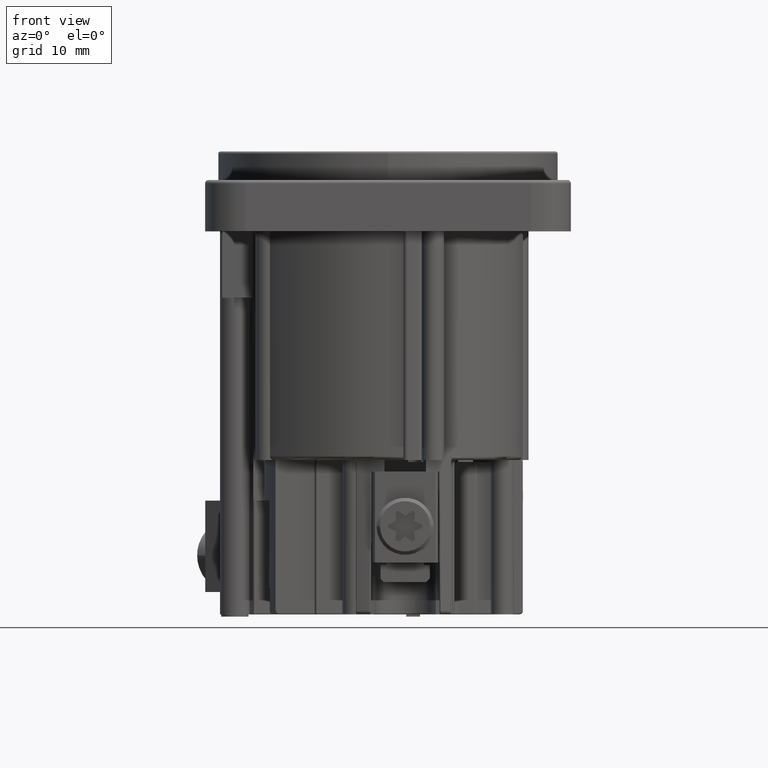
[diagram: clean part render]
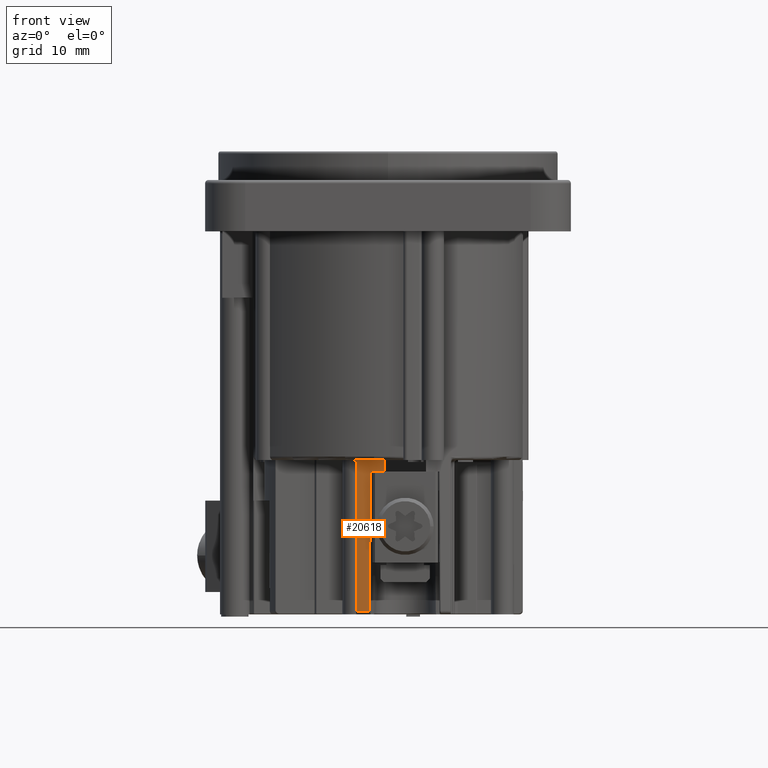
[diagram: same view with one face highlighted and labeled with its STEP entity id]
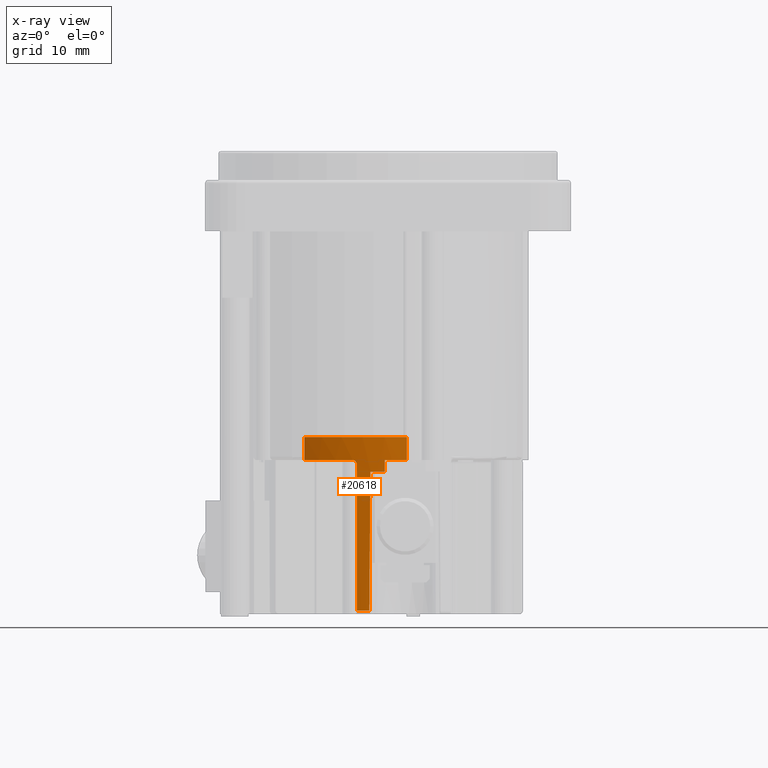
[diagram: x-ray of the same camera — body ghosted, the highlighted face saturated]
A machine part, front view. The second image highlights one B-rep face of the part: STEP entity #20618.
The next image is the same camera in x-ray: the body ghosted, the highlighted face saturated — about 0% of this face is hidden behind the body in this view.
In plain terms, the highlighted cylindrical surface (partial cylindrical patch) has radius 10.5 mm, axis along (0, 0, 1).
Its self-contained STEP definition (entity closure, byte-faithful):
#769=CARTESIAN_POINT('',(0.E0,0.E0,-2.7E1));
#770=DIRECTION('',(0.E0,0.E0,1.E0));
#771=DIRECTION('',(-6.951741476225E-1,-7.188413625253E-1,0.E0));
#772=AXIS2_PLACEMENT_3D('',#769,#770,#771);
#2304=CARTESIAN_POINT('',(0.E0,0.E0,-2.8E1));
#2305=DIRECTION('',(0.E0,0.E0,1.E0));
#2306=DIRECTION('',(-1.466348497103E-1,-9.891906898321E-1,0.E0));
#2307=AXIS2_PLACEMENT_3D('',#2304,#2305,#2306);
#3490=CARTESIAN_POINT('',(0.E0,0.E0,-2.8E1));
#3491=DIRECTION('',(0.E0,0.E0,1.E0));
#3492=DIRECTION('',(-1.285714285714E-1,-9.917002509605E-1,0.E0));
#3493=AXIS2_PLACEMENT_3D('',#3490,#3491,#3492);
#3495=CARTESIAN_POINT('',(-1.625658314958E0,-1.037339050001E1,
-4.019999999997E1));
#3496=CARTESIAN_POINT('',(-1.616109460583E0,-1.037488694175E1,
-3.884527577859E1));
#3497=CARTESIAN_POINT('',(-1.597007894854E0,-1.037785373612E1,
-3.613527311255E1));
#3498=CARTESIAN_POINT('',(-1.568343732354E0,-1.038222411473E1,
-3.206860644572E1));
#3499=CARTESIAN_POINT('',(-1.549226495747E0,-1.038508501063E1,
-2.935638688922E1));
#3500=CARTESIAN_POINT('',(-1.539665921959E0,-1.038650224324E1,-2.8E1));
#3502=CARTESIAN_POINT('',(0.E0,0.E0,-4.02E1));
#3503=DIRECTION('',(0.E0,0.E0,-1.E0));
#3504=DIRECTION('',(-1.548246046385E-1,-9.879419728904E-1,0.E0));
#3505=AXIS2_PLACEMENT_3D('',#3502,#3503,#3504);
#3507=DIRECTION('',(-4.504777646323E-8,-1.675936298540E-7,1.E0));
#3508=VECTOR('',#3507,1.290000000055E1);
#3509=CARTESIAN_POINT('',(-2.725960957345E0,-1.013997484447E1,
-4.020000000055E1));
#3510=LINE('',#3509,#3508);
#3511=CARTESIAN_POINT('',(-3.1E0,-1.003194896319E1,-2.7E1));
#3512=CARTESIAN_POINT('',(-3.093768723899E0,-1.003387450687E1,-2.7E1));
#3513=CARTESIAN_POINT('',(-3.081317246079E0,-1.003770945207E1,
-2.700038790677E1));
#3514=CARTESIAN_POINT('',(-3.068887600475E0,-1.004151238772E1,
-2.700155205356E1));
#3515=CARTESIAN_POINT('',(-3.062678566223E0,-1.004340579684E1,
-2.700233053469E1));
#3517=CARTESIAN_POINT('',(0.E0,0.E0,-2.5E1));
#3518=DIRECTION('',(0.E0,0.E0,1.E0));
#3519=DIRECTION('',(-6.951741476225E-1,-7.188413625253E-1,0.E0));
#3520=AXIS2_PLACEMENT_3D('',#3517,#3518,#3519);
#3522=DIRECTION('',(0.E0,0.E0,-1.E0));
#3523=VECTOR('',#3522,2.E0);
#3524=CARTESIAN_POINT('',(1.65E0,-1.036954675962E1,-2.5E1));
#3525=LINE('',#3524,#3523);
#3526=CARTESIAN_POINT('',(0.E0,0.E0,-2.7E1));
#3527=DIRECTION('',(0.E0,0.E0,-1.E0));
#3528=DIRECTION('',(1.571428571429E-1,-9.875758818688E-1,0.E0));
#3529=AXIS2_PLACEMENT_3D('',#3526,#3527,#3528);
#3531=DIRECTION('',(0.E0,0.E0,-1.E0));
#3532=VECTOR('',#3531,1.E0);
#3533=CARTESIAN_POINT('',(-3.E-1,-1.049571341072E1,-2.7E1));
#3534=LINE('',#3533,#3532);
#7949=CARTESIAN_POINT('',(-3.062678566223E0,-1.004340579684E1,
-2.700233053469E1));
#7950=CARTESIAN_POINT('',(-3.030532161172E0,-1.005320865732E1,
-2.700636101166E1));
#7951=CARTESIAN_POINT('',(-2.967736445742E0,-1.007202883517E1,
-2.702422939700E1));
#7952=CARTESIAN_POINT('',(-2.874908977772E0,-1.009889612392E1,
-2.708498378292E1));
#7953=CARTESIAN_POINT('',(-2.794399497669E0,-1.012142224858E1,
-2.717899083654E1));
#7954=CARTESIAN_POINT('',(-2.749547485608E0,-1.013363632294E1,
-2.725789939883E1));
#7955=CARTESIAN_POINT('',(-2.725961538462E0,-1.013997700643E1,-2.73E1));
#11254=DIRECTION('',(0.E0,0.E0,-1.E0));
#11255=VECTOR('',#11254,2.E0);
#11256=CARTESIAN_POINT('',(-7.299328550037E0,-7.547834306516E0,-2.5E1));
#11257=LINE('',#11256,#11255);
#13595=CARTESIAN_POINT('',(1.65E0,-1.036954675962E1,-2.7E1));
#13597=VERTEX_POINT('',#13595);
#13600=CARTESIAN_POINT('',(1.65E0,-1.036954675962E1,-2.5E1));
#13601=VERTEX_POINT('',#13600);
#13606=CARTESIAN_POINT('',(-7.299328550037E0,-7.547834306516E0,-2.7E1));
#13608=VERTEX_POINT('',#13606);
#13614=CARTESIAN_POINT('',(-7.299328550037E0,-7.547834306516E0,-2.5E1));
#13615=VERTEX_POINT('',#13614);
#14203=CARTESIAN_POINT('',(-3.E-1,-1.049571341072E1,-2.7E1));
#14204=VERTEX_POINT('',#14203);
#14676=VERTEX_POINT('',#3495);
#14677=VERTEX_POINT('',#3500);
#14786=CARTESIAN_POINT('',(-2.725961538462E0,-1.013997700643E1,-4.02E1));
#14787=VERTEX_POINT('',#14786);
#15065=CARTESIAN_POINT('',(-2.725961538462E0,-1.013997700643E1,-2.73E1));
#15066=VERTEX_POINT('',#15065);
#15090=CARTESIAN_POINT('',(-3.1E0,-1.003194896319E1,-2.7E1));
#15091=VERTEX_POINT('',#15090);
#15108=VERTEX_POINT('',#7949);
#16027=CARTESIAN_POINT('',(-1.35E0,-1.041285263509E1,-2.8E1));
#16028=CARTESIAN_POINT('',(-3.E-1,-1.049571341072E1,-2.8E1));
#16029=VERTEX_POINT('',#16027);
#16030=VERTEX_POINT('',#16028);
#20589=CARTESIAN_POINT('',(0.E0,0.E0,0.E0));
#20590=DIRECTION('',(0.E0,0.E0,1.E0));
#20591=DIRECTION('',(1.E0,0.E0,0.E0));
#20592=AXIS2_PLACEMENT_3D('',#20589,#20590,#20591);
#20593=CYLINDRICAL_SURFACE('',#20592,1.05E1);
#20594=ORIENTED_EDGE('',*,*,#19122,.F.);
#20595=ORIENTED_EDGE('',*,*,#18941,.F.);
#20597=ORIENTED_EDGE('',*,*,#20596,.F.);
#20599=ORIENTED_EDGE('',*,*,#20598,.T.);
#20601=ORIENTED_EDGE('',*,*,#20600,.T.);
#20603=ORIENTED_EDGE('',*,*,#20602,.F.);
#20605=ORIENTED_EDGE('',*,*,#20604,.F.);
#20606=ORIENTED_EDGE('',*,*,#17142,.F.);
#20608=ORIENTED_EDGE('',*,*,#20607,.F.);
#20610=ORIENTED_EDGE('',*,*,#20609,.T.);
#20612=ORIENTED_EDGE('',*,*,#20611,.T.);
#20613=ORIENTED_EDGE('',*,*,#17134,.T.);
#20615=ORIENTED_EDGE('',*,*,#20614,.T.);
#20616=EDGE_LOOP('',(#20594,#20595,#20597,#20599,#20601,#20603,#20605,#20606,
#20608,#20610,#20612,#20613,#20615));
#20617=FACE_OUTER_BOUND('',#20616,.F.);
#773=CIRCLE('',#772,1.05E1);
#2308=CIRCLE('',#2307,1.05E1);
#3494=CIRCLE('',#3493,1.05E1);
#3501=B_SPLINE_CURVE_WITH_KNOTS('',3,(#3495,#3496,#3497,#3498,#3499,#3500),
.UNSPECIFIED.,.F.,.F.,(4,1,1,4),(0.E0,3.333333333333E-1,6.666666666667E-1,1.E0),
.UNSPECIFIED.);
#3506=CIRCLE('',#3505,1.05E1);
#3516=B_SPLINE_CURVE_WITH_KNOTS('',3,(#3511,#3512,#3513,#3514,#3515),
.UNSPECIFIED.,.F.,.F.,(4,1,4),(0.E0,5.E-1,1.E0),.UNSPECIFIED.);
#3521=CIRCLE('',#3520,1.05E1);
#3530=CIRCLE('',#3529,1.05E1);
#7956=B_SPLINE_CURVE_WITH_KNOTS('',3,(#7949,#7950,#7951,#7952,#7953,#7954,
#7955),.UNSPECIFIED.,.F.,.F.,(4,1,1,1,4),(0.E0,2.5E-1,5.E-1,7.5E-1,1.E0),
.UNSPECIFIED.);
#17134=EDGE_CURVE('',#13597,#14204,#3530,.T.);
#17142=EDGE_CURVE('',#13608,#15091,#773,.T.);
#18941=EDGE_CURVE('',#14677,#16029,#2308,.T.);
#19122=EDGE_CURVE('',#16029,#16030,#3494,.T.);
#20596=EDGE_CURVE('',#14676,#14677,#3501,.T.);
#20598=EDGE_CURVE('',#14676,#14787,#3506,.T.);
#20600=EDGE_CURVE('',#14787,#15066,#3510,.T.);
#20602=EDGE_CURVE('',#15108,#15066,#7956,.T.);
#20604=EDGE_CURVE('',#15091,#15108,#3516,.T.);
#20607=EDGE_CURVE('',#13615,#13608,#11257,.T.);
#20609=EDGE_CURVE('',#13615,#13601,#3521,.T.);
#20611=EDGE_CURVE('',#13601,#13597,#3525,.T.);
#20614=EDGE_CURVE('',#14204,#16030,#3534,.T.);
#20618=ADVANCED_FACE('',(#20617),#20593,.T.);